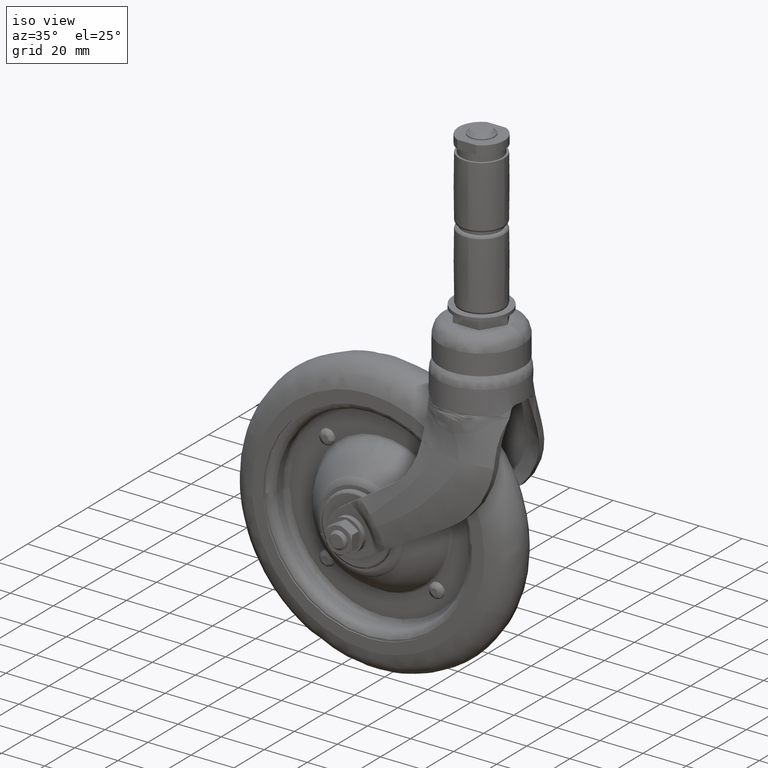
[diagram: clean part render]
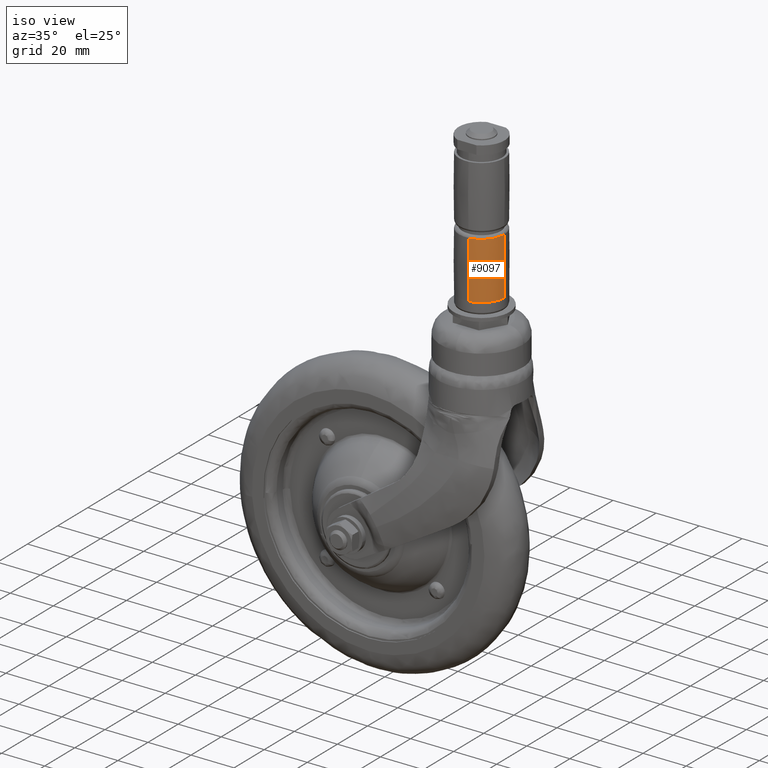
[diagram: same view with one face highlighted and labeled with its STEP entity id]
A machine part, iso view. The second image highlights one B-rep face of the part: STEP entity #9097.
In plain terms, the highlighted face is a freeform B-spline surface patch.
Its self-contained STEP definition (entity closure, byte-faithful):
#7537=CARTESIAN_POINT('',(55.499979311117123,0.0,104.899995811467700));
#7538=VERTEX_POINT('',#7537);
#7552=CARTESIAN_POINT('',(46.212372041073053,-10.429751843484301,104.899999977481200));
#7553=VERTEX_POINT('',#7552);
#7554=CARTESIAN_POINT('',(55.499979311117123,0.0,104.899995811467700));
#7555=CARTESIAN_POINT('',(55.499979184249121,-9.350144405822196,104.899997894474450));
#7556=CARTESIAN_POINT('',(46.212372041073053,-10.429751843484299,104.899999977481220));
#7564=(BOUNDED_CURVE()B_SPLINE_CURVE(2,(#7554,#7555,#7556),.UNSPECIFIED.,.F.,.U.)B_SPLINE_CURVE_WITH_KNOTS((3,3),(0.500000000000000,0.729999999991786),.UNSPECIFIED.)CURVE()GEOMETRIC_REPRESENTATION_ITEM()RATIONAL_B_SPLINE_CURVE((1.0,0.730538238701247,0.956886118174492))REPRESENTATION_ITEM(''));
#7565=EDGE_CURVE('',#7538,#7553,#7564,.T.);
#8487=CARTESIAN_POINT('',(46.212372098702389,-10.429752339299061,131.500000045048610));
#8488=VERTEX_POINT('',#8487);
#8504=CARTESIAN_POINT('',(55.499979706913287,0.0,131.500006500964190));
#8505=VERTEX_POINT('',#8504);
#8506=CARTESIAN_POINT('',(55.499979706913287,0.0,131.500006500964190));
#8507=CARTESIAN_POINT('',(55.499979852485225,-9.350145046906395,131.500003273006460));
#8508=CARTESIAN_POINT('',(46.212372098702389,-10.429752339299061,131.500000045048640));
#8516=(BOUNDED_CURVE()B_SPLINE_CURVE(2,(#8506,#8507,#8508),.UNSPECIFIED.,.F.,.U.)B_SPLINE_CURVE_WITH_KNOTS((3,3),(0.500000000000000,0.729999999991946),.UNSPECIFIED.)CURVE()GEOMETRIC_REPRESENTATION_ITEM()RATIONAL_B_SPLINE_CURVE((1.0,0.730538238701060,0.956886118174807))REPRESENTATION_ITEM(''));
#8517=EDGE_CURVE('',#8505,#8488,#8516,.T.);
#9041=CARTESIAN_POINT('',(55.499979311117116,0.0,104.899995811467690));
#9042=CARTESIAN_POINT('',(56.100285671764098,0.0,118.200001147283670));
#9043=CARTESIAN_POINT('',(55.499979706913479,0.0,131.500006500964220));
#9051=(BOUNDED_CURVE()B_SPLINE_CURVE(2,(#9041,#9042,#9043),.UNSPECIFIED.,.F.,.U.)B_SPLINE_CURVE_WITH_KNOTS((3,3),(0.417411882192966,0.582588132040959),.UNSPECIFIED.)CURVE()GEOMETRIC_REPRESENTATION_ITEM()RATIONAL_B_SPLINE_CURVE((0.982192357168110,0.981193403890132,0.982192357340278))REPRESENTATION_ITEM(''));
#9052=EDGE_CURVE('',#7538,#8505,#9051,.T.);
#9058=CARTESIAN_POINT('',(46.212372041073060,-10.429751843484297,104.899999977481190));
#9059=CARTESIAN_POINT('',(46.281685902665714,-11.026042713005891,118.200000000000260));
#9060=CARTESIAN_POINT('',(46.212372098702389,-10.429752339299061,131.500000045048610));
#9068=(BOUNDED_CURVE()B_SPLINE_CURVE(2,(#9058,#9059,#9060),.UNSPECIFIED.,.F.,.U.)B_SPLINE_CURVE_WITH_KNOTS((3,3),(0.417411908088777,0.582588091911226),.UNSPECIFIED.)CURVE()GEOMETRIC_REPRESENTATION_ITEM()RATIONAL_B_SPLINE_CURVE((0.939846231667406,0.938890347824803,0.939846231667406))REPRESENTATION_ITEM(''));
#9069=EDGE_CURVE('',#7553,#8488,#9068,.T.);
#9074=CARTESIAN_POINT('',(55.437084343402262,0.0,103.572883013618980));
#9075=CARTESIAN_POINT('',(56.163322436274299,0.0,118.199995195229720));
#9076=CARTESIAN_POINT('',(55.437084819343838,0.0,132.827107400471050));
#9077=CARTESIAN_POINT('',(55.437084343402262,-9.294136988630539,103.572883013618960));
#9078=CARTESIAN_POINT('',(56.163322436274285,-9.940845983157475,118.199995195229730));
#9079=CARTESIAN_POINT('',(55.437084819343816,-9.294137412452566,132.827107400471050));
#9080=CARTESIAN_POINT('',(46.205109900132612,-10.367277353283015,103.572883013618920));
#9081=CARTESIAN_POINT('',(46.288964421834038,-11.088658103461892,118.199995195229750));
#9082=CARTESIAN_POINT('',(46.205109955086840,-10.367277826041322,132.827107400470990));
#9090=(BOUNDED_SURFACE()B_SPLINE_SURFACE(2,2,((#9074,#9077,#9080),(#9075,#9078,#9081),(#9076,#9079,#9082)),.UNSPECIFIED.,.F.,.F.,.U.)B_SPLINE_SURFACE_WITH_KNOTS((3,3),(3,3),(0.0,29.272231097010469),(0.0,16.444416275831330),.UNSPECIFIED.)GEOMETRIC_REPRESENTATION_ITEM()RATIONAL_B_SPLINE_SURFACE(((0.982297137602881,0.717605620776232,0.939946494910618),(0.981088623937934,0.716722755332007,0.938790084960985),(0.982297136809904,0.717605620196932,0.939946494151829)))REPRESENTATION_ITEM('')SURFACE());
#9091=ORIENTED_EDGE('',*,*,#8517,.T.);
#9092=ORIENTED_EDGE('',*,*,#9069,.F.);
#9093=ORIENTED_EDGE('',*,*,#7565,.F.);
#9094=ORIENTED_EDGE('',*,*,#9052,.T.);
#9095=EDGE_LOOP('',(#9091,#9092,#9093,#9094));
#9096=FACE_OUTER_BOUND('',#9095,.T.);
#9097=ADVANCED_FACE('',(#9096),#9090,.T.);